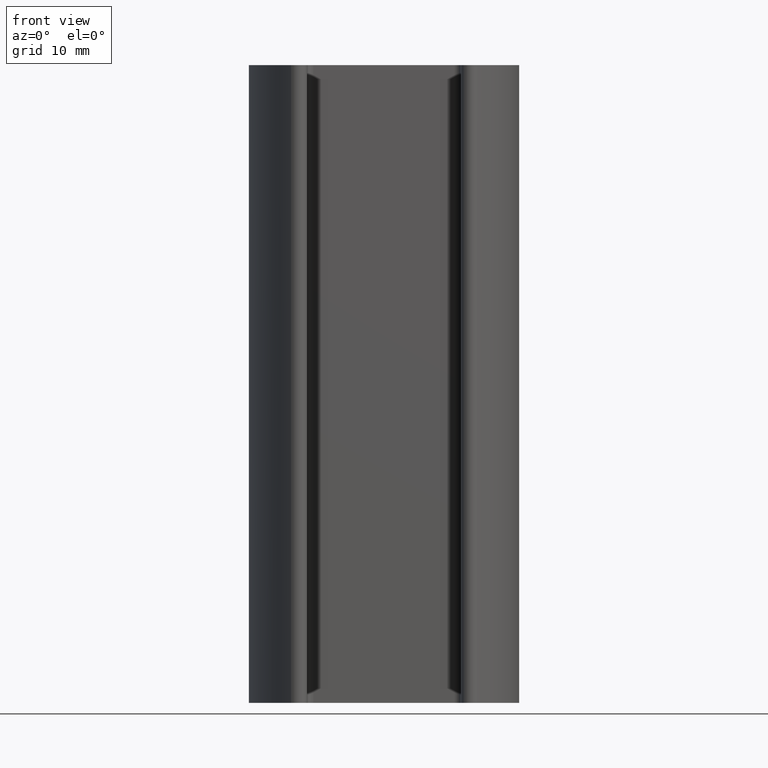
[diagram: clean part render]
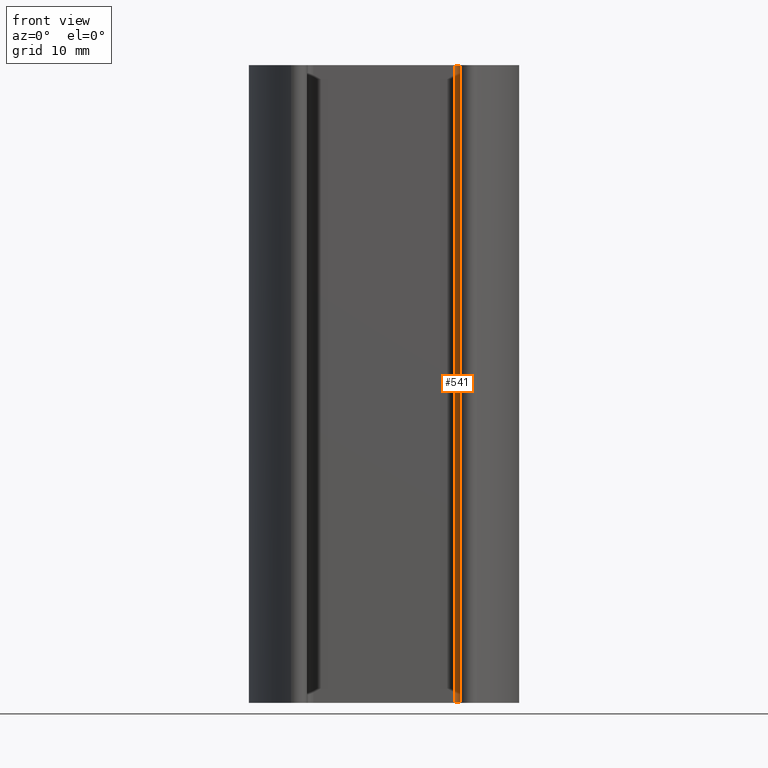
[diagram: same view with one face highlighted and labeled with its STEP entity id]
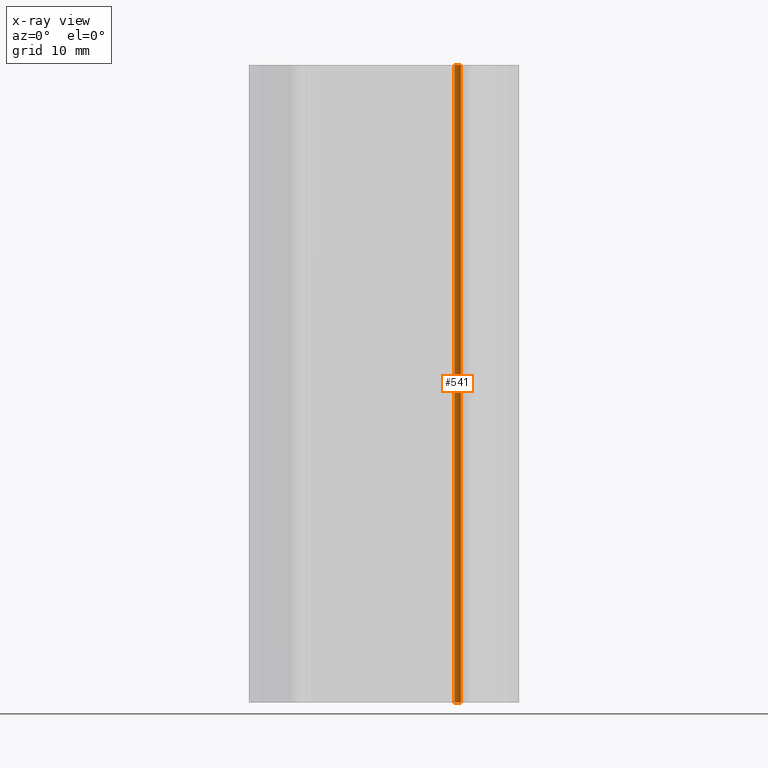
[diagram: x-ray of the same camera — body ghosted, the highlighted face saturated]
A machine part, front view. The second image highlights one B-rep face of the part: STEP entity #541.
The next image is the same camera in x-ray: the body ghosted, the highlighted face saturated — about 0% of this face is hidden behind the body in this view.
In plain terms, the highlighted cylindrical surface (edge-blend (fillet) strip) has radius 1 mm, axis along (0, 0, -1).
Its self-contained STEP definition (entity closure, byte-faithful):
#56=LINE('',#814,#118);
#58=LINE('',#820,#120);
#118=VECTOR('',#659,1000.);
#120=VECTOR('',#665,1000.);
#192=ORIENTED_EDGE('',*,*,#342,.T.);
#193=ORIENTED_EDGE('',*,*,#343,.F.);
#194=ORIENTED_EDGE('',*,*,#344,.F.);
#195=ORIENTED_EDGE('',*,*,#340,.T.);
#340=EDGE_CURVE('',#413,#412,#56,.T.);
#342=EDGE_CURVE('',#412,#414,#454,.T.);
#343=EDGE_CURVE('',#415,#414,#58,.T.);
#344=EDGE_CURVE('',#413,#415,#455,.T.);
#412=VERTEX_POINT('',#813);
#413=VERTEX_POINT('',#815);
#414=VERTEX_POINT('',#819);
#415=VERTEX_POINT('',#821);
#454=CIRCLE('',#587,1.);
#455=CIRCLE('',#588,1.);
#473=EDGE_LOOP('',(#192,#193,#194,#195));
#503=FACE_BOUND('',#473,.T.);
#528=CYLINDRICAL_SURFACE('',#586,1.);
#541=ADVANCED_FACE('',(#503),#528,.F.);
#586=AXIS2_PLACEMENT_3D('',#817,#661,#662);
#587=AXIS2_PLACEMENT_3D('',#818,#663,#664);
#588=AXIS2_PLACEMENT_3D('',#822,#666,#667);
#659=DIRECTION('',(0.,0.,-1.));
#661=DIRECTION('',(0.,0.,-1.));
#662=DIRECTION('',(-1.,0.,0.));
#663=DIRECTION('',(0.,0.,-1.));
#664=DIRECTION('',(-1.,0.,0.));
#665=DIRECTION('',(0.,0.,-1.));
#666=DIRECTION('',(0.,0.,-1.));
#667=DIRECTION('',(-1.,0.,0.));
#813=CARTESIAN_POINT('',(11.0500000000004,-1.73472347597681E-15,-50.));
#814=CARTESIAN_POINT('',(11.0500000000004,-1.73472347597681E-15,50.));
#815=CARTESIAN_POINT('',(11.0500000000004,-1.73472347597681E-15,50.));
#817=CARTESIAN_POINT('',(11.0500000000004,-1.,50.));
#818=CARTESIAN_POINT('',(11.0500000000004,-1.,-50.));
#819=CARTESIAN_POINT('',(12.0500000000004,-1.,-50.));
#820=CARTESIAN_POINT('',(12.0500000000004,-1.,50.));
#821=CARTESIAN_POINT('',(12.0500000000004,-1.,50.));
#822=CARTESIAN_POINT('',(11.0500000000004,-1.,50.));